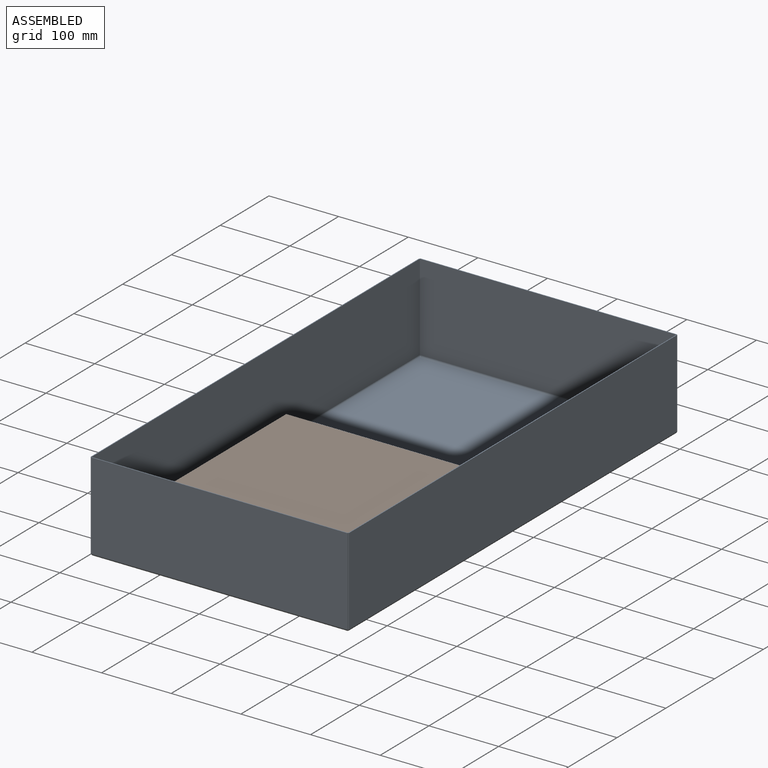
[diagram: assembled view]
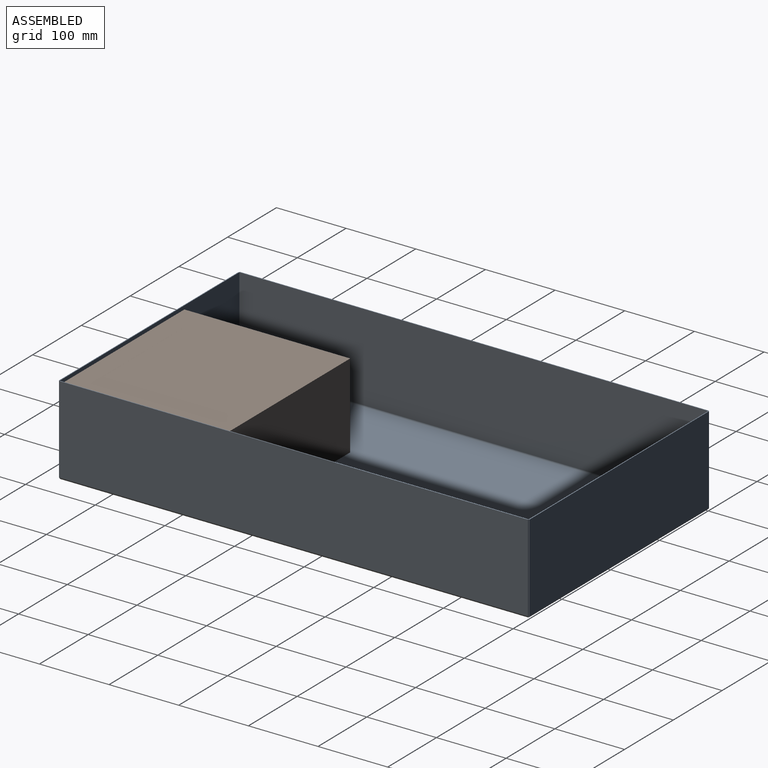
[diagram: assembled view, second angle]
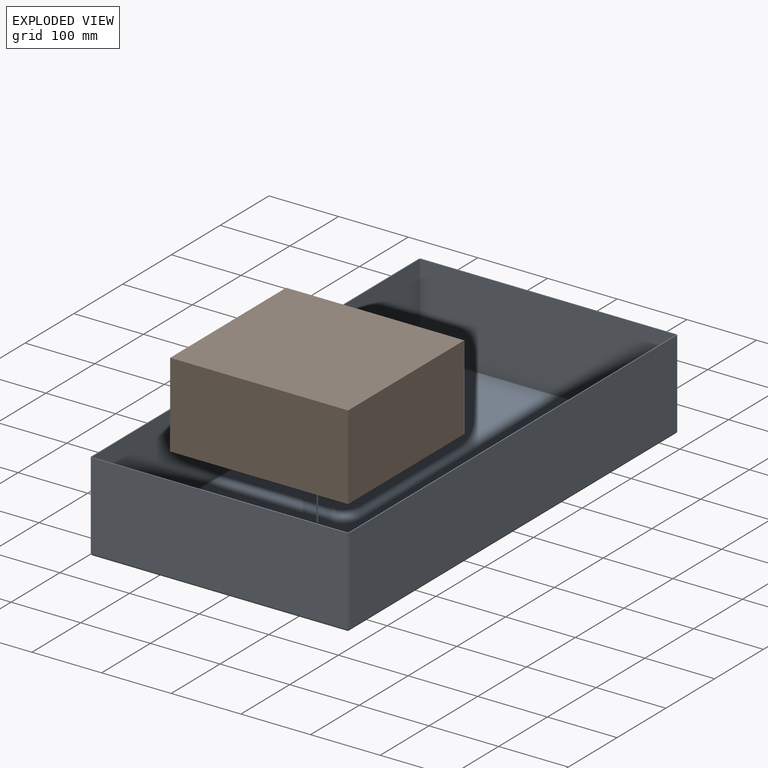
[diagram: exploded view]
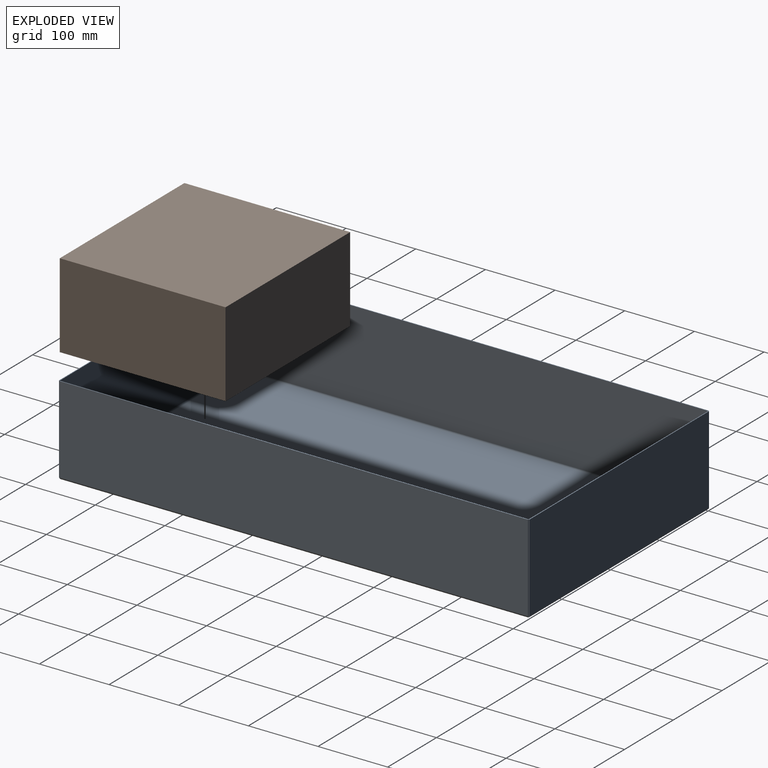
[diagram: exploded view, second angle]
ASSEMBLY  parts=2 mates=3
PART A: 42 faces, bbox 370.7x675.5x128.2 mm
  f0: plane 368.25x1.19mm, normal (0,0,1), area 439.6mm2, adj f1,f2,f3,f4
  f1: plane 124.71x1.19mm, normal (-1,0,0), area 148.9mm2, adj f0,f3,f4,f39
  f2: plane 124.71x1.19mm, normal (1,0,0), area 148.9mm2, adj f0,f3,f4,f38
  f3: plane 368.25x124.71mm, normal (0,-1,0), area 45925.8mm2, adj f0,f1,f2,f40
  f4: plane 368.25x124.71mm, normal (0,1,0), area 45925.8mm2, adj f0,f1,f2,f41
  f5: plane 668.53x363.73mm, normal (0,0,-1), area 243162.4mm2, adj f7,f8,f9,f10,f18,f27,f36,f40
  f6: plane 668.53x363.73mm, normal (0,0,1), area 243162.4mm2, adj f7,f8,f9,f10,f19,f28,f37,f41
  f7: plane 1.19x0.02mm, normal (0.71,0.71,0), area 0mm2, adj f5,f6,f16,f34
  f8: plane 1.19x0.02mm, normal (0.71,-0.71,0), area 0mm2, adj f5,f6,f35,f38
  f9: plane 1.19x0.02mm, normal (-0.71,-0.71,0), area 0mm2, adj f5,f6,f26,f39
  f10: plane 1.19x0.02mm, normal (-0.71,0.71,0), area 0mm2, adj f5,f6,f17,f25
  f11: plane 368.25x1.19mm, normal (0,0,1), area 439.6mm2, adj f12,f13,f14,f15
  f12: plane 124.71x1.19mm, normal (1,0,0), area 148.9mm2, adj f11,f14,f15,f16
  f13: plane 124.71x1.19mm, normal (-1,0,0), area 148.9mm2, adj f11,f14,f15,f17
  f14: plane 368.25x124.71mm, normal (0,1,0), area 45925.8mm2, adj f11,f12,f13,f18
  f15: plane 368.25x124.71mm, normal (0,-1,0), area 45925.8mm2, adj f11,f12,f13,f19
  f16: bspline ~3.48x3.48mm, area 6.2mm2, adj f7,f12,f18,f19
  f17: bspline ~3.48x3.48mm, area 6.2mm2, adj f10,f13,f18,f19
  f18: cylinder r=3.48mm len=368.25mm, axis (1,0,0), area 2003.8mm2, adj f5,f14,f16,f17
  f19: cylinder r=2.29mm len=368.25mm, axis (1,0,0), area 1316.4mm2, adj f6,f15,f16,f17
  f20: plane 673.05x1.19mm, normal (0,0,1), area 803.5mm2, adj f21,f22,f23,f24
  f21: plane 124.71x1.19mm, normal (0,1,0), area 148.9mm2, adj f20,f23,f24,f25
  f22: plane 124.71x1.19mm, normal (0,-1,0), area 148.9mm2, adj f20,f23,f24,f26
  f23: plane 673.05x124.71mm, normal (-1,0,0), area 83938.7mm2, adj f20,f21,f22,f27
  f24: plane 673.05x124.71mm, normal (1,0,0), area 83938.7mm2, adj f20,f21,f22,f28
  f25: bspline ~3.48x3.48mm, area 6.2mm2, adj f10,f21,f27,f28
  f26: bspline ~3.48x3.48mm, area 6.2mm2, adj f9,f22,f27,f28
  f27: cylinder r=3.48mm len=673.05mm, axis (0,1,0), area 3669.9mm2, adj f5,f23,f25,f26
  f28: cylinder r=2.29mm len=673.05mm, axis (0,1,0), area 2410.9mm2, adj f6,f24,f25,f26
  f29: plane 673.05x1.19mm, normal (0,0,1), area 803.5mm2, adj f30,f31,f32,f33
  f30: plane 124.71x1.19mm, normal (0,-1,0), area 148.9mm2, adj f29,f32,f33,f35
  f31: plane 124.71x1.19mm, normal (0,1,0), area 148.9mm2, adj f29,f32,f33,f34
  f32: plane 673.05x124.71mm, normal (1,0,0), area 83938.7mm2, adj f29,f30,f31,f36
  f33: plane 673.05x124.71mm, normal (-1,0,0), area 83938.7mm2, adj f29,f30,f31,f37
  f34: bspline ~3.48x3.48mm, area 6.2mm2, adj f7,f31,f36,f37
  f35: bspline ~3.48x3.48mm, area 6.2mm2, adj f8,f30,f36,f37
  f36: cylinder r=3.48mm len=673.05mm, axis (0,1,0), area 3669.9mm2, adj f5,f32,f34,f35
  f37: cylinder r=2.29mm len=673.05mm, axis (0,1,0), area 2410.9mm2, adj f6,f33,f34,f35
  f38: bspline ~3.48x3.48mm, area 6.2mm2, adj f2,f8,f40,f41
  f39: bspline ~3.48x3.48mm, area 6.2mm2, adj f1,f9,f40,f41
  f40: cylinder r=3.48mm len=368.25mm, axis (1,0,0), area 2003.8mm2, adj f3,f5,f38,f39
  f41: cylinder r=2.29mm len=368.25mm, axis (1,0,0), area 1316.4mm2, adj f4,f6,f38,f39
PART B: 6 faces, bbox 255.5x238x121.8 mm
  f0: plane 255.52x121.8mm, normal (0,1,0), area 31122.8mm2, adj f1,f3,f4,f5
  f1: plane 238x121.8mm, normal (-1,0,0), area 28988.4mm2, adj f0,f2,f4,f5
  f2: plane 255.52x121.8mm, normal (0,-1,0), area 31122.8mm2, adj f1,f3,f4,f5
  f3: plane 238x121.8mm, normal (1,0,0), area 28988.4mm2, adj f0,f2,f4,f5
  f4: plane 255.52x238mm, normal (0,0,1), area 60814.7mm2, adj f0,f1,f2,f3
  f5: plane 255.52x238mm, normal (0,0,-1), area 60814.7mm2, adj f0,f1,f2,f3
PLACE A t=(-82.05,-360.46,317.81)mm fixed
PLACE B t=(30.73,-360.46,317.81)mm
MATE planar B.f5 <-> A.f6  axis (0,0,-1) through (158.49,-241.46,317.81)mm
MATE planar A.f4 <-> B.f2  axis (0,1,0) through (102.1,-360.46,382.45)mm
MATE planar B.f3 <-> A.f33  axis (1,0,0) through (286.25,-241.46,378.71)mm
